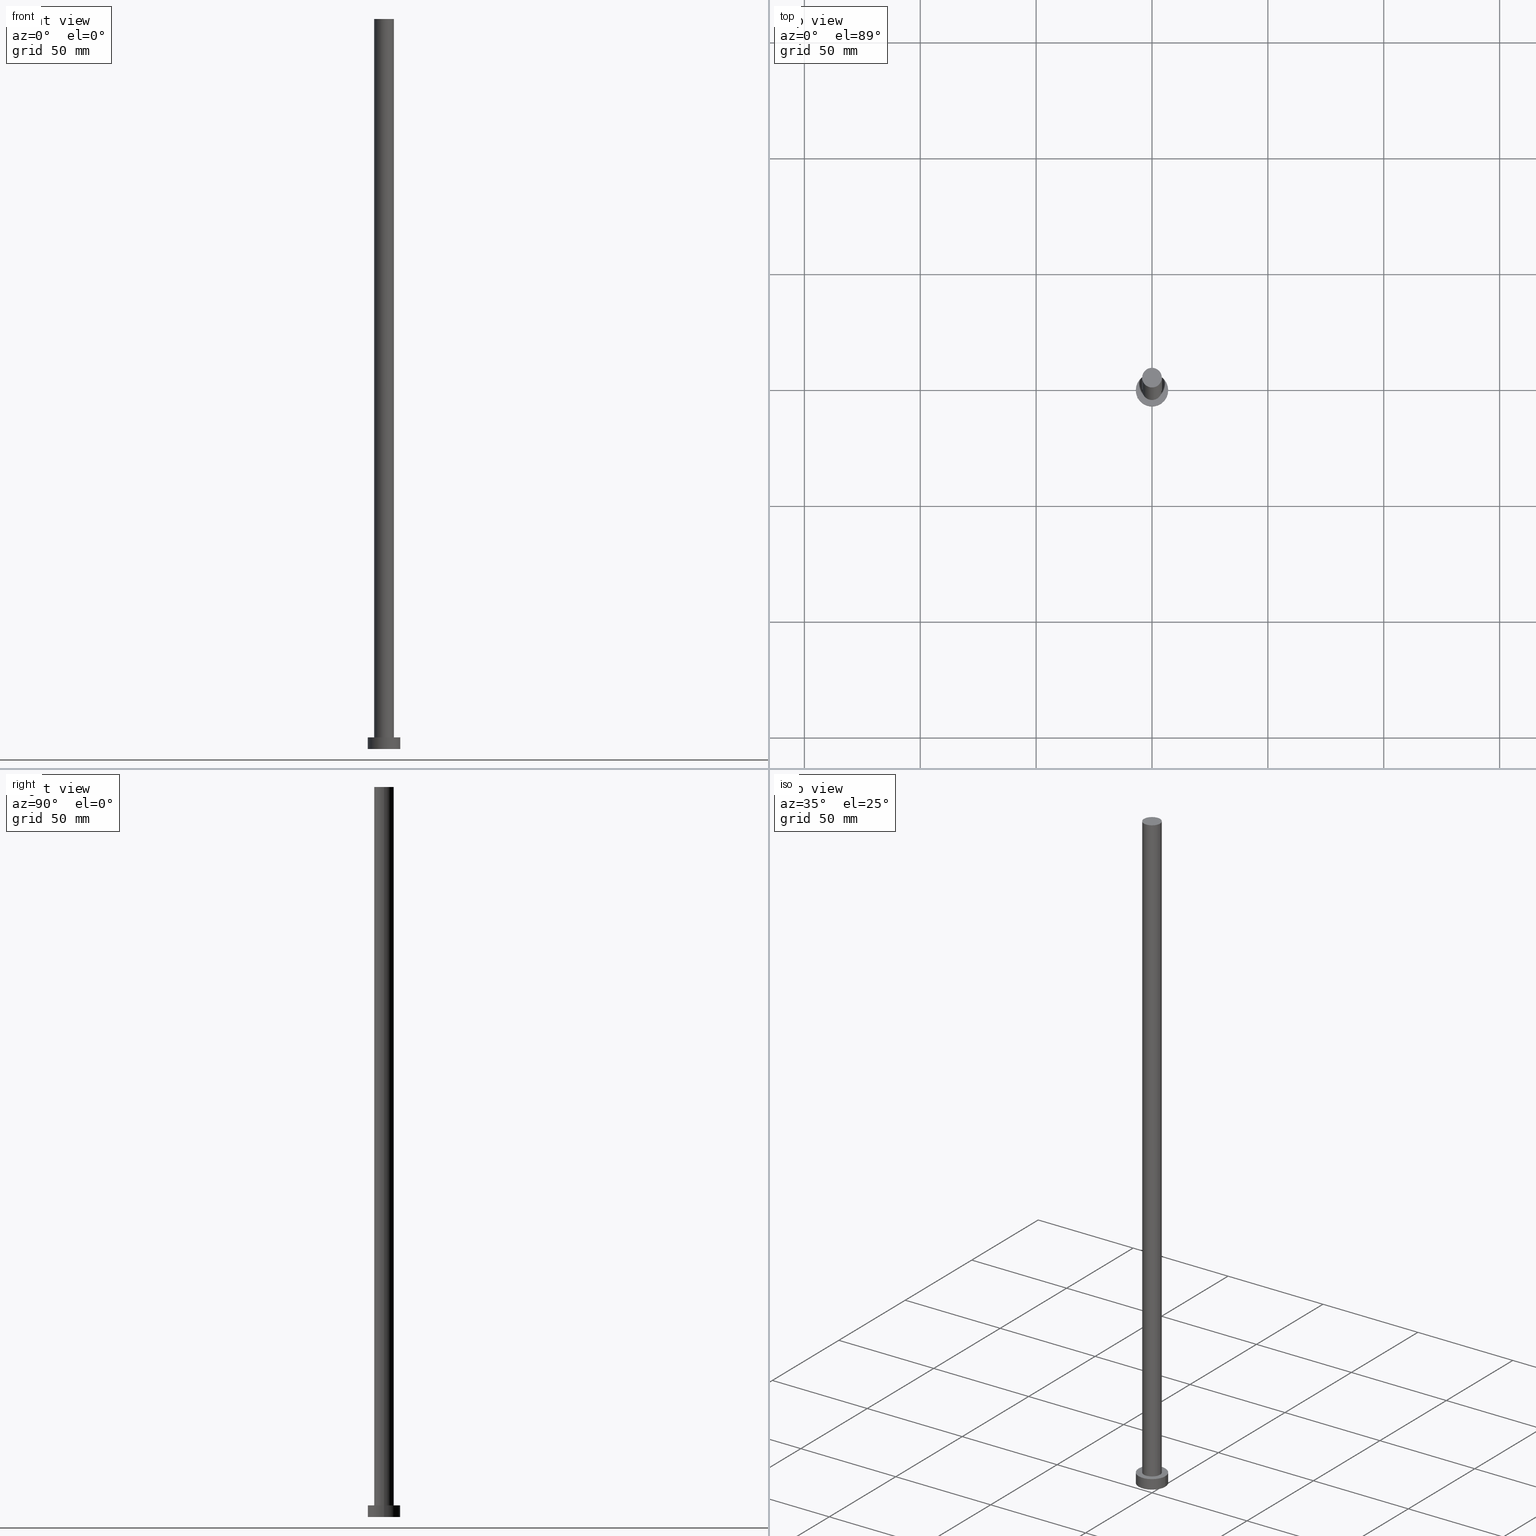
[diagram: canonical four-view strip — front | top / right | iso, engineering-drawing reading convention]
A machine part, canonical four-view strip (front | top / right | iso — engineering-drawing reading convention). The complete STEP part file that produces these views, byte-faithful:
ISO-10303-21;
HEADER;
FILE_DESCRIPTION (( 'STEP AP203' ),
    '1' );
FILE_NAME ('addd.STEP',
    '2023-02-13T12:52:07',
    ( '' ),
    ( '' ),
    'SwSTEP 2.0',
    'SolidWorks 2019',
    '' );
FILE_SCHEMA (( 'CONFIG_CONTROL_DESIGN' ));
ENDSEC;

DATA;
#1 = DIRECTION ( 'NONE',  ( 1.000000000000000000, 0.000000000000000000, -0.000000000000000000 ) ) ;
#2 = AXIS2_PLACEMENT_3D ( 'NONE', #101, #44, #168 ) ;
#3 = DIRECTION ( 'NONE',  ( 1.000000000000000000, 0.000000000000000000, 0.000000000000000000 ) ) ;
#4 = CARTESIAN_POINT ( 'NONE',  ( 0.000000000000000000, 0.000000000000000000, 0.000000000000000000 ) ) ;
#5 =( GEOMETRIC_REPRESENTATION_CONTEXT ( 3 ) GLOBAL_UNCERTAINTY_ASSIGNED_CONTEXT ( ( #202 ) ) GLOBAL_UNIT_ASSIGNED_CONTEXT ( ( #90, #242, #149 ) ) REPRESENTATION_CONTEXT ( 'NONE', 'WORKASPACE' ) );
#6 = FACE_OUTER_BOUND ( 'NONE', #206, .T. ) ;
#7 = ORIENTED_EDGE ( 'NONE', *, *, #177, .F. ) ;
#8 = APPLICATION_PROTOCOL_DEFINITION ( 'international standard', 'config_control_design', 1994, #152 ) ;
#9 = APPLICATION_PROTOCOL_DEFINITION ( 'international standard', 'config_control_design', 1994, #218 ) ;
#10 = ADVANCED_BREP_SHAPE_REPRESENTATION ( 'addd', ( #232, #216 ), #5 ) ;
#11 = APPROVAL_DATE_TIME ( #250, #154 ) ;
#12 = VERTEX_POINT ( 'NONE', #51 ) ;
#13 = LOCAL_TIME ( 13, 52, 7.000000000000000000, #200 ) ;
#14 = EDGE_CURVE ( 'NONE', #12, #135, #87, .T. ) ;
#15 = DIRECTION ( 'NONE',  ( -1.000000000000000000, 0.000000000000000000, 0.000000000000000000 ) ) ;
#16 = CARTESIAN_POINT ( 'NONE',  ( 0.000000000000000000, 0.000000000000000000, 5.000000000000000000 ) ) ;
#17 = ORIENTED_EDGE ( 'NONE', *, *, #118, .T. ) ;
#18 = SECURITY_CLASSIFICATION ( '', '', #63 ) ;
#19 = CARTESIAN_POINT ( 'NONE',  ( 0.000000000000000000, 0.000000000000000000, 5.000000000000000000 ) ) ;
#20 = EDGE_LOOP ( 'NONE', ( #225, #17 ) ) ;
#21 = PRODUCT_DEFINITION_SHAPE ( 'NONE', 'NONE',  #144 ) ;
#22 = CC_DESIGN_DATE_AND_TIME_ASSIGNMENT ( #47, #251, ( #144 ) ) ;
#23 = CARTESIAN_POINT ( 'NONE',  ( 7.000000000000000000, 8.572527594031473190E-16, 5.000000000000000000 ) ) ;
#24 = DIRECTION ( 'NONE',  ( 0.000000000000000000, 0.000000000000000000, 1.000000000000000000 ) ) ;
#25 = CIRCLE ( 'NONE', #62, 7.000000000000000000 ) ;
#26 = CALENDAR_DATE ( 2023, 13, 2 ) ;
#27 = VERTEX_POINT ( 'NONE', #204 ) ;
#28 = APPROVAL_ROLE ( '' ) ;
#29 = APPROVAL_STATUS ( 'not_yet_approved' ) ;
#30 = CALENDAR_DATE ( 2023, 13, 2 ) ;
#31 = APPROVAL_PERSON_ORGANIZATION ( #205, #154, #67 ) ;
#32 = CARTESIAN_POINT ( 'NONE',  ( 0.000000000000000000, 0.000000000000000000, 315.0000000000000000 ) ) ;
#33 = AXIS2_PLACEMENT_3D ( 'NONE', #124, #85, #125 ) ;
#34 = ADVANCED_FACE ( 'NONE', ( #252 ), #210, .T. ) ;
#35 = DIRECTION ( 'NONE',  ( 0.000000000000000000, 0.000000000000000000, 1.000000000000000000 ) ) ;
#36 = EDGE_LOOP ( 'NONE', ( #114, #83, #60, #7 ) ) ;
#37 = CARTESIAN_POINT ( 'NONE',  ( 0.000000000000000000, 0.000000000000000000, 5.000000000000000000 ) ) ;
#38 = EDGE_LOOP ( 'NONE', ( #129, #93 ) ) ;
#39 = AXIS2_PLACEMENT_3D ( 'NONE', #180, #132, #199 ) ;
#40 = CARTESIAN_POINT ( 'NONE',  ( -4.250000000000000000, 0.000000000000000000, 5.000000000000000000 ) ) ;
#41 = EDGE_CURVE ( 'NONE', #193, #98, #254, .T. ) ;
#42 = DATE_AND_TIME ( #244, #143 ) ;
#43 = DATE_AND_TIME ( #30, #164 ) ;
#44 = DIRECTION ( 'NONE',  ( 0.000000000000000000, 0.000000000000000000, 1.000000000000000000 ) ) ;
#45 = SHAPE_DEFINITION_REPRESENTATION ( #21, #10 ) ;
#46 = DIRECTION ( 'NONE',  ( 1.000000000000000000, 0.000000000000000000, -0.000000000000000000 ) ) ;
#47 = DATE_AND_TIME ( #223, #84 ) ;
#48 = PRODUCT_RELATED_PRODUCT_CATEGORY ( 'detail', '', ( #190 ) ) ;
#49 = APPROVAL_DATE_TIME ( #42, #96 ) ;
#50 = VECTOR ( 'NONE', #134, 1000.000000000000000 ) ;
#51 = CARTESIAN_POINT ( 'NONE',  ( 4.250000000000000000, 5.204748896376250699E-16, 315.0000000000000000 ) ) ;
#52 = ORGANIZATION ( 'NEUR�EN�', 'NEUR�EN�', '' ) ;
#53 = DIRECTION ( 'NONE',  ( 1.000000000000000000, 0.000000000000000000, 0.000000000000000000 ) ) ;
#54 = ORIENTED_EDGE ( 'NONE', *, *, #182, .T. ) ;
#55 = ORIENTED_EDGE ( 'NONE', *, *, #14, .F. ) ;
#56 = FACE_OUTER_BOUND ( 'NONE', #20, .T. ) ;
#57 = AXIS2_PLACEMENT_3D ( 'NONE', #158, #155, #53 ) ;
#58 = DIRECTION ( 'NONE',  ( 1.000000000000000000, 0.000000000000000000, 0.000000000000000000 ) ) ;
#59 = ORIENTED_EDGE ( 'NONE', *, *, #173, .T. ) ;
#60 = ORIENTED_EDGE ( 'NONE', *, *, #41, .T. ) ;
#61 = PERSON_AND_ORGANIZATION ( #238, #52 ) ;
#62 = AXIS2_PLACEMENT_3D ( 'NONE', #213, #35, #103 ) ;
#63 = SECURITY_CLASSIFICATION_LEVEL ( 'unclassified' ) ;
#64 = ORIENTED_EDGE ( 'NONE', *, *, #170, .T. ) ;
#65 = PERSON_AND_ORGANIZATION_ROLE ( 'creator' ) ;
#66 = CYLINDRICAL_SURFACE ( 'NONE', #33, 4.250000000000000000 ) ;
#67 = APPROVAL_ROLE ( '' ) ;
#68 = ORIENTED_EDGE ( 'NONE', *, *, #137, .F. ) ;
#69 = DIRECTION ( 'NONE',  ( -1.000000000000000000, 0.000000000000000000, 0.000000000000000000 ) ) ;
#70 = ADVANCED_FACE ( 'NONE', ( #166 ), #66, .T. ) ;
#71 = PLANE ( 'NONE',  #122 ) ;
#72 = EDGE_LOOP ( 'NONE', ( #159, #110 ) ) ;
#73 = DIRECTION ( 'NONE',  ( 1.000000000000000000, 0.000000000000000000, -0.000000000000000000 ) ) ;
#74 = DESIGN_CONTEXT ( 'detailed design', #152, 'design' ) ;
#75 = DIRECTION ( 'NONE',  ( 0.000000000000000000, 0.000000000000000000, 1.000000000000000000 ) ) ;
#76 = AXIS2_PLACEMENT_3D ( 'NONE', #161, #120, #249 ) ;
#77 = CARTESIAN_POINT ( 'NONE',  ( 7.000000000000000000, 8.572527594031473190E-16, 5.000000000000000000 ) ) ;
#78 = PERSON_AND_ORGANIZATION ( #238, #52 ) ;
#79 = COORDINATED_UNIVERSAL_TIME_OFFSET ( 1, 0, .AHEAD. ) ;
#80 = AXIS2_PLACEMENT_3D ( 'NONE', #32, #227, #46 ) ;
#81 = AXIS2_PLACEMENT_3D ( 'NONE', #217, #111, #15 ) ;
#82 = MECHANICAL_CONTEXT ( 'NONE', #218, 'mechanical' ) ;
#83 = ORIENTED_EDGE ( 'NONE', *, *, #234, .T. ) ;
#84 = LOCAL_TIME ( 13, 52, 7.000000000000000000, #138 ) ;
#85 = DIRECTION ( 'NONE',  ( -0.000000000000000000, -0.000000000000000000, -1.000000000000000000 ) ) ;
#86 = CARTESIAN_POINT ( 'NONE',  ( 0.000000000000000000, 0.000000000000000000, 315.0000000000000000 ) ) ;
#87 = CIRCLE ( 'NONE', #2, 4.250000000000000000 ) ;
#88 = ADVANCED_FACE ( 'NONE', ( #169 ), #214, .T. ) ;
#89 = CARTESIAN_POINT ( 'NONE',  ( 0.000000000000000000, 0.000000000000000000, 5.000000000000000000 ) ) ;
#90 =( LENGTH_UNIT ( ) NAMED_UNIT ( * ) SI_UNIT ( .MILLI., .METRE. ) );
#91 = AXIS2_PLACEMENT_3D ( 'NONE', #4, #24, #58 ) ;
#92 = DIRECTION ( 'NONE',  ( -0.000000000000000000, -0.000000000000000000, -1.000000000000000000 ) ) ;
#93 = ORIENTED_EDGE ( 'NONE', *, *, #14, .T. ) ;
#94 = CARTESIAN_POINT ( 'NONE',  ( 7.000000000000000000, 8.572527594031473190E-16, 0.000000000000000000 ) ) ;
#95 = ORIENTED_EDGE ( 'NONE', *, *, #182, .F. ) ;
#96 = APPROVAL ( #29, 'NEUR�EN�' ) ;
#97 = AXIS2_PLACEMENT_3D ( 'NONE', #16, #219, #73 ) ;
#98 = VERTEX_POINT ( 'NONE', #102 ) ;
#99 = COORDINATED_UNIVERSAL_TIME_OFFSET ( 1, 0, .AHEAD. ) ;
#100 = APPROVAL_STATUS ( 'not_yet_approved' ) ;
#101 = CARTESIAN_POINT ( 'NONE',  ( 0.000000000000000000, 0.000000000000000000, 315.0000000000000000 ) ) ;
#102 = CARTESIAN_POINT ( 'NONE',  ( -7.000000000000000000, 0.000000000000000000, 0.000000000000000000 ) ) ;
#103 = DIRECTION ( 'NONE',  ( 1.000000000000000000, 0.000000000000000000, 0.000000000000000000 ) ) ;
#104 = CIRCLE ( 'NONE', #39, 4.250000000000000000 ) ;
#105 = LINE ( 'NONE', #77, #146 ) ;
#106 = CARTESIAN_POINT ( 'NONE',  ( 4.250000000000000000, 5.204748896376250699E-16, 315.0000000000000000 ) ) ;
#107 = EDGE_LOOP ( 'NONE', ( #185, #117, #64, #203 ) ) ;
#108 = FACE_OUTER_BOUND ( 'NONE', #36, .T. ) ;
#109 = VECTOR ( 'NONE', #176, 1000.000000000000000 ) ;
#110 = ORIENTED_EDGE ( 'NONE', *, *, #173, .F. ) ;
#111 = DIRECTION ( 'NONE',  ( -0.000000000000000000, -0.000000000000000000, -1.000000000000000000 ) ) ;
#112 = CC_DESIGN_PERSON_AND_ORGANIZATION_ASSIGNMENT ( #248, #141, ( #18 ) ) ;
#113 = CYLINDRICAL_SURFACE ( 'NONE', #171, 7.000000000000000000 ) ;
#114 = ORIENTED_EDGE ( 'NONE', *, *, #118, .F. ) ;
#115 = APPROVAL_DATE_TIME ( #186, #147 ) ;
#116 = PERSON_AND_ORGANIZATION_ROLE ( 'design_supplier' ) ;
#117 = ORIENTED_EDGE ( 'NONE', *, *, #133, .F. ) ;
#118 = EDGE_CURVE ( 'NONE', #237, #27, #25, .T. ) ;
#119 = PERSON_AND_ORGANIZATION_ROLE ( 'design_owner' ) ;
#120 = DIRECTION ( 'NONE',  ( 0.000000000000000000, 0.000000000000000000, 1.000000000000000000 ) ) ;
#121 = PERSON_AND_ORGANIZATION_ROLE ( 'creator' ) ;
#122 = AXIS2_PLACEMENT_3D ( 'NONE', #191, #75, #1 ) ;
#123 = CC_DESIGN_PERSON_AND_ORGANIZATION_ASSIGNMENT ( #163, #65, ( #144 ) ) ;
#124 = CARTESIAN_POINT ( 'NONE',  ( 0.000000000000000000, 0.000000000000000000, 315.0000000000000000 ) ) ;
#125 = DIRECTION ( 'NONE',  ( -1.000000000000000000, 0.000000000000000000, 0.000000000000000000 ) ) ;
#126 = ADVANCED_FACE ( 'NONE', ( #189 ), #255, .T. ) ;
#127 = APPROVAL_PERSON_ORGANIZATION ( #208, #147, #28 ) ;
#128 = CARTESIAN_POINT ( 'NONE',  ( -4.250000000000000000, 0.000000000000000000, 315.0000000000000000 ) ) ;
#129 = ORIENTED_EDGE ( 'NONE', *, *, #133, .T. ) ;
#130 = DIRECTION ( 'NONE',  ( -0.000000000000000000, -0.000000000000000000, -1.000000000000000000 ) ) ;
#131 = EDGE_LOOP ( 'NONE', ( #55, #222, #59, #157 ) ) ;
#132 = DIRECTION ( 'NONE',  ( 0.000000000000000000, 0.000000000000000000, 1.000000000000000000 ) ) ;
#133 = EDGE_CURVE ( 'NONE', #135, #12, #240, .T. ) ;
#134 = DIRECTION ( 'NONE',  ( -0.000000000000000000, -0.000000000000000000, -1.000000000000000000 ) ) ;
#135 = VERTEX_POINT ( 'NONE', #241 ) ;
#136 = DIRECTION ( 'NONE',  ( 0.000000000000000000, 0.000000000000000000, 1.000000000000000000 ) ) ;
#137 = EDGE_CURVE ( 'NONE', #27, #237, #195, .T. ) ;
#138 = COORDINATED_UNIVERSAL_TIME_OFFSET ( 1, 0, .AHEAD. ) ;
#139 = DIRECTION ( 'NONE',  ( 1.000000000000000000, 0.000000000000000000, 0.000000000000000000 ) ) ;
#140 = EDGE_CURVE ( 'NONE', #12, #181, #174, .T. ) ;
#141 = PERSON_AND_ORGANIZATION_ROLE ( 'classification_officer' ) ;
#142 = APPROVAL_ROLE ( '' ) ;
#143 = LOCAL_TIME ( 13, 52, 7.000000000000000000, #226 ) ;
#144 = PRODUCT_DEFINITION ( 'NEZN�M�', '', #253, #74 ) ;
#145 = CC_DESIGN_DATE_AND_TIME_ASSIGNMENT ( #43, #160, ( #18 ) ) ;
#146 = VECTOR ( 'NONE', #235, 1000.000000000000000 ) ;
#147 = APPROVAL ( #228, 'NEUR�EN�' ) ;
#148 = AXIS2_PLACEMENT_3D ( 'NONE', #19, #136, #179 ) ;
#149 =( NAMED_UNIT ( * ) SI_UNIT ( $, .STERADIAN. ) SOLID_ANGLE_UNIT ( ) );
#150 = ORIENTED_EDGE ( 'NONE', *, *, #41, .F. ) ;
#151 = PLANE ( 'NONE',  #97 ) ;
#152 = APPLICATION_CONTEXT ( 'configuration controlled 3d designs of mechanical parts and assemblies' ) ;
#153 = CARTESIAN_POINT ( 'NONE',  ( 4.250000000000000000, 5.204748896376250699E-16, 5.000000000000000000 ) ) ;
#154 = APPROVAL ( #100, 'NEUR�EN�' ) ;
#155 = DIRECTION ( 'NONE',  ( 0.000000000000000000, 0.000000000000000000, 1.000000000000000000 ) ) ;
#156 = LOCAL_TIME ( 13, 52, 7.000000000000000000, #79 ) ;
#157 = ORIENTED_EDGE ( 'NONE', *, *, #170, .F. ) ;
#158 = CARTESIAN_POINT ( 'NONE',  ( 0.000000000000000000, 0.000000000000000000, 315.0000000000000000 ) ) ;
#159 = ORIENTED_EDGE ( 'NONE', *, *, #220, .F. ) ;
#160 = DATE_TIME_ROLE ( 'classification_date' ) ;
#161 = CARTESIAN_POINT ( 'NONE',  ( 0.000000000000000000, 0.000000000000000000, 0.000000000000000000 ) ) ;
#162 = CC_DESIGN_PERSON_AND_ORGANIZATION_ASSIGNMENT ( #78, #121, ( #253 ) ) ;
#163 = PERSON_AND_ORGANIZATION ( #238, #52 ) ;
#164 = LOCAL_TIME ( 13, 52, 7.000000000000000000, #99 ) ;
#165 = PERSON_AND_ORGANIZATION ( #238, #52 ) ;
#166 = FACE_OUTER_BOUND ( 'NONE', #107, .T. ) ;
#167 = DIRECTION ( 'NONE',  ( 0.000000000000000000, 0.000000000000000000, 1.000000000000000000 ) ) ;
#168 = DIRECTION ( 'NONE',  ( 1.000000000000000000, 0.000000000000000000, 0.000000000000000000 ) ) ;
#169 = FACE_OUTER_BOUND ( 'NONE', #131, .T. ) ;
#170 = EDGE_CURVE ( 'NONE', #135, #198, #221, .T. ) ;
#171 = AXIS2_PLACEMENT_3D ( 'NONE', #37, #92, #69 ) ;
#172 = DIRECTION ( 'NONE',  ( -0.000000000000000000, -0.000000000000000000, -1.000000000000000000 ) ) ;
#173 = EDGE_CURVE ( 'NONE', #181, #198, #230, .T. ) ;
#174 = LINE ( 'NONE', #106, #109 ) ;
#175 = AXIS2_PLACEMENT_3D ( 'NONE', #86, #172, #212 ) ;
#176 = DIRECTION ( 'NONE',  ( -0.000000000000000000, -0.000000000000000000, -1.000000000000000000 ) ) ;
#177 = EDGE_CURVE ( 'NONE', #27, #98, #197, .T. ) ;
#178 = CARTESIAN_POINT ( 'NONE',  ( -7.000000000000000000, 0.000000000000000000, 5.000000000000000000 ) ) ;
#179 = DIRECTION ( 'NONE',  ( 1.000000000000000000, 0.000000000000000000, 0.000000000000000000 ) ) ;
#180 = CARTESIAN_POINT ( 'NONE',  ( 0.000000000000000000, 0.000000000000000000, 5.000000000000000000 ) ) ;
#181 = VERTEX_POINT ( 'NONE', #153 ) ;
#182 = EDGE_CURVE ( 'NONE', #98, #193, #211, .T. ) ;
#183 = ORIENTED_EDGE ( 'NONE', *, *, #177, .T. ) ;
#184 = CARTESIAN_POINT ( 'NONE',  ( 0.000000000000000000, 0.000000000000000000, 0.000000000000000000 ) ) ;
#185 = ORIENTED_EDGE ( 'NONE', *, *, #140, .F. ) ;
#186 = DATE_AND_TIME ( #245, #13 ) ;
#187 = EDGE_LOOP ( 'NONE', ( #243, #68, #183, #54 ) ) ;
#188 = ADVANCED_FACE ( 'NONE', ( #6 ), #71, .F. ) ;
#189 = FACE_OUTER_BOUND ( 'NONE', #187, .T. ) ;
#190 = PRODUCT ( 'addd', 'addd', '', ( #82 ) ) ;
#191 = CARTESIAN_POINT ( 'NONE',  ( 0.000000000000000000, 0.000000000000000000, 0.000000000000000000 ) ) ;
#192 = DIRECTION ( 'NONE',  ( 0.000000000000000000, 0.000000000000000000, 1.000000000000000000 ) ) ;
#193 = VERTEX_POINT ( 'NONE', #94 ) ;
#194 = CC_DESIGN_PERSON_AND_ORGANIZATION_ASSIGNMENT ( #61, #116, ( #253 ) ) ;
#195 = CIRCLE ( 'NONE', #207, 7.000000000000000000 ) ;
#196 = VECTOR ( 'NONE', #130, 1000.000000000000000 ) ;
#197 = LINE ( 'NONE', #178, #196 ) ;
#198 = VERTEX_POINT ( 'NONE', #40 ) ;
#199 = DIRECTION ( 'NONE',  ( 1.000000000000000000, 0.000000000000000000, 0.000000000000000000 ) ) ;
#200 = COORDINATED_UNIVERSAL_TIME_OFFSET ( 1, 0, .AHEAD. ) ;
#201 = CC_DESIGN_APPROVAL ( #147, ( #253 ) ) ;
#202 = UNCERTAINTY_MEASURE_WITH_UNIT (LENGTH_MEASURE( 1.000000000000000082E-05 ), #90, 'distance_accuracy_value', 'NONE');
#203 = ORIENTED_EDGE ( 'NONE', *, *, #220, .T. ) ;
#204 = CARTESIAN_POINT ( 'NONE',  ( -7.000000000000000000, 0.000000000000000000, 5.000000000000000000 ) ) ;
#205 = PERSON_AND_ORGANIZATION ( #238, #52 ) ;
#206 = EDGE_LOOP ( 'NONE', ( #95, #150 ) ) ;
#207 = AXIS2_PLACEMENT_3D ( 'NONE', #89, #192, #3 ) ;
#208 = PERSON_AND_ORGANIZATION ( #238, #52 ) ;
#209 = ADVANCED_FACE ( 'NONE', ( #239, #56 ), #151, .T. ) ;
#210 = PLANE ( 'NONE',  #80 ) ;
#211 = CIRCLE ( 'NONE', #91, 7.000000000000000000 ) ;
#212 = DIRECTION ( 'NONE',  ( -1.000000000000000000, 0.000000000000000000, 0.000000000000000000 ) ) ;
#213 = CARTESIAN_POINT ( 'NONE',  ( 0.000000000000000000, 0.000000000000000000, 5.000000000000000000 ) ) ;
#214 = CYLINDRICAL_SURFACE ( 'NONE', #175, 4.250000000000000000 ) ;
#215 = CC_DESIGN_APPROVAL ( #96, ( #144 ) ) ;
#216 = AXIS2_PLACEMENT_3D ( 'NONE', #184, #167, #139 ) ;
#217 = CARTESIAN_POINT ( 'NONE',  ( 0.000000000000000000, 0.000000000000000000, 5.000000000000000000 ) ) ;
#218 = APPLICATION_CONTEXT ( 'configuration controlled 3d designs of mechanical parts and assemblies' ) ;
#219 = DIRECTION ( 'NONE',  ( 0.000000000000000000, 0.000000000000000000, 1.000000000000000000 ) ) ;
#220 = EDGE_CURVE ( 'NONE', #198, #181, #104, .T. ) ;
#221 = LINE ( 'NONE', #128, #50 ) ;
#222 = ORIENTED_EDGE ( 'NONE', *, *, #140, .T. ) ;
#223 = CALENDAR_DATE ( 2023, 13, 2 ) ;
#224 = CLOSED_SHELL ( 'NONE', ( #88, #236, #126, #209, #188, #70, #34 ) ) ;
#225 = ORIENTED_EDGE ( 'NONE', *, *, #137, .T. ) ;
#226 = COORDINATED_UNIVERSAL_TIME_OFFSET ( 1, 0, .AHEAD. ) ;
#227 = DIRECTION ( 'NONE',  ( 0.000000000000000000, 0.000000000000000000, 1.000000000000000000 ) ) ;
#228 = APPROVAL_STATUS ( 'not_yet_approved' ) ;
#229 = PERSON_AND_ORGANIZATION ( #238, #52 ) ;
#230 = CIRCLE ( 'NONE', #148, 4.250000000000000000 ) ;
#231 = CC_DESIGN_APPROVAL ( #154, ( #18 ) ) ;
#232 = MANIFOLD_SOLID_BREP ( 'P�idat vysunut�m3', #224 ) ;
#233 = CC_DESIGN_SECURITY_CLASSIFICATION ( #18, ( #253 ) ) ;
#234 = EDGE_CURVE ( 'NONE', #237, #193, #105, .T. ) ;
#235 = DIRECTION ( 'NONE',  ( -0.000000000000000000, -0.000000000000000000, -1.000000000000000000 ) ) ;
#236 = ADVANCED_FACE ( 'NONE', ( #108 ), #113, .T. ) ;
#237 = VERTEX_POINT ( 'NONE', #23 ) ;
#238 = PERSON ( 'NEUR�EN�', 'NEUR�EN�', 'NEUR�EN�', ('NEUR�EN�'), ('NEUR�EN�'), ('NEUR�EN�') ) ;
#239 = FACE_BOUND ( 'NONE', #72, .T. ) ;
#240 = CIRCLE ( 'NONE', #57, 4.250000000000000000 ) ;
#241 = CARTESIAN_POINT ( 'NONE',  ( -4.250000000000000000, 0.000000000000000000, 315.0000000000000000 ) ) ;
#242 =( NAMED_UNIT ( * ) PLANE_ANGLE_UNIT ( ) SI_UNIT ( $, .RADIAN. ) );
#243 = ORIENTED_EDGE ( 'NONE', *, *, #234, .F. ) ;
#244 = CALENDAR_DATE ( 2023, 13, 2 ) ;
#245 = CALENDAR_DATE ( 2023, 13, 2 ) ;
#246 = APPROVAL_PERSON_ORGANIZATION ( #165, #96, #142 ) ;
#247 = CC_DESIGN_PERSON_AND_ORGANIZATION_ASSIGNMENT ( #229, #119, ( #190 ) ) ;
#248 = PERSON_AND_ORGANIZATION ( #238, #52 ) ;
#249 = DIRECTION ( 'NONE',  ( 1.000000000000000000, 0.000000000000000000, 0.000000000000000000 ) ) ;
#250 = DATE_AND_TIME ( #26, #156 ) ;
#251 = DATE_TIME_ROLE ( 'creation_date' ) ;
#252 = FACE_OUTER_BOUND ( 'NONE', #38, .T. ) ;
#253 = PRODUCT_DEFINITION_FORMATION_WITH_SPECIFIED_SOURCE ( 'LIBOVOLN�', '', #190, .NOT_KNOWN. ) ;
#254 = CIRCLE ( 'NONE', #76, 7.000000000000000000 ) ;
#255 = CYLINDRICAL_SURFACE ( 'NONE', #81, 7.000000000000000000 ) ;
ENDSEC;
END-ISO-10303-21;
